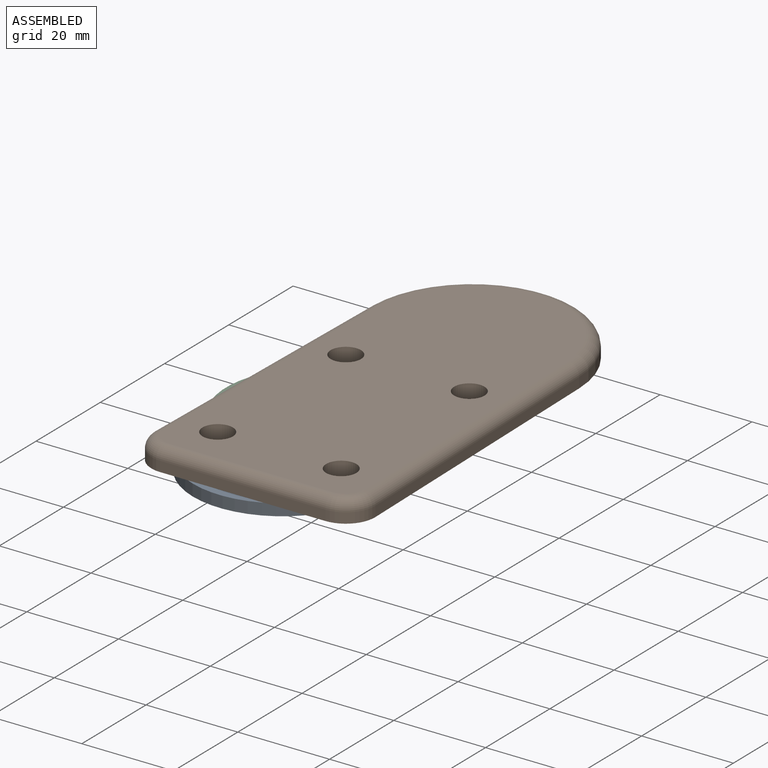
[diagram: assembled view]
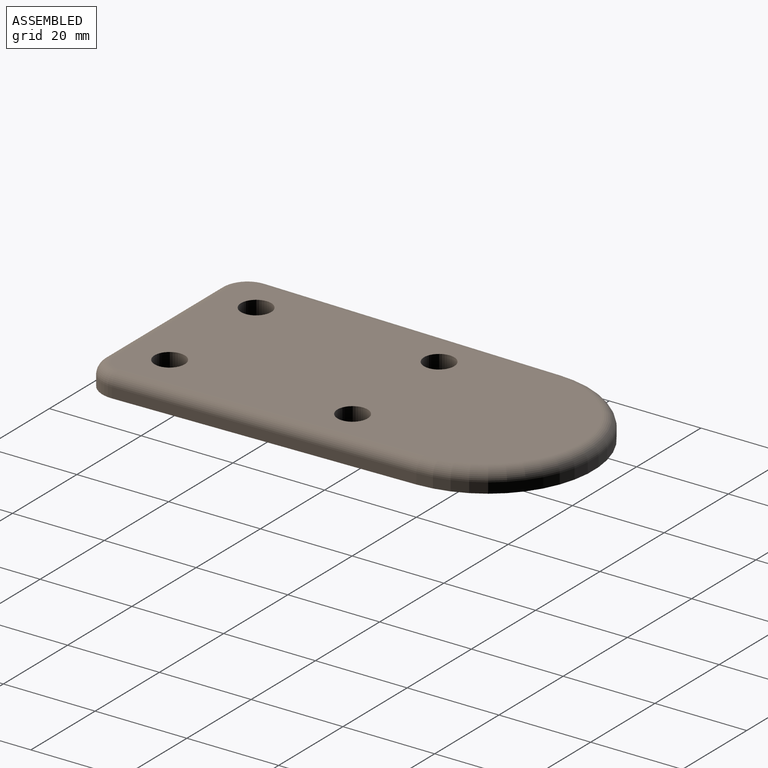
[diagram: assembled view, second angle]
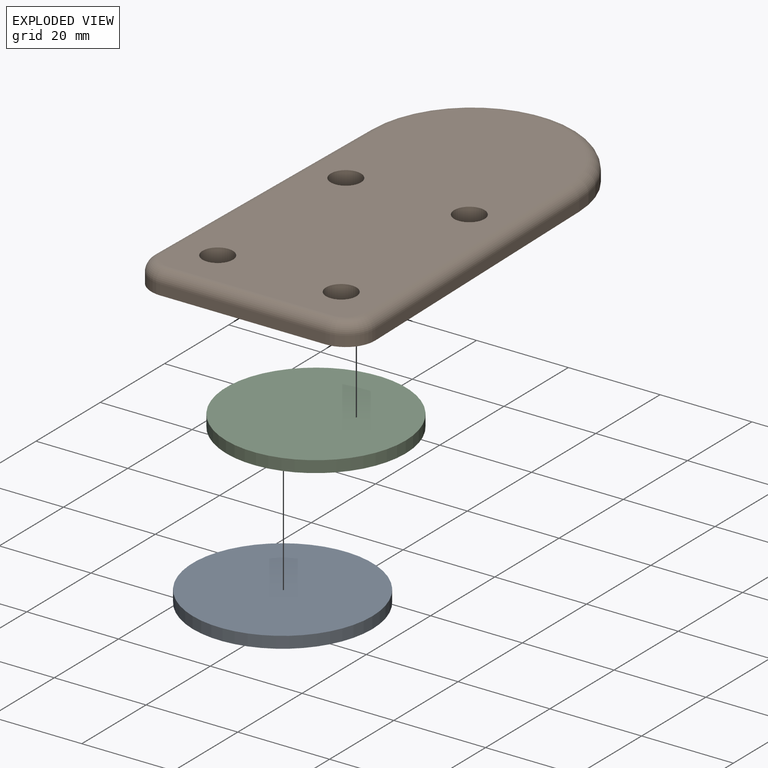
[diagram: exploded view]
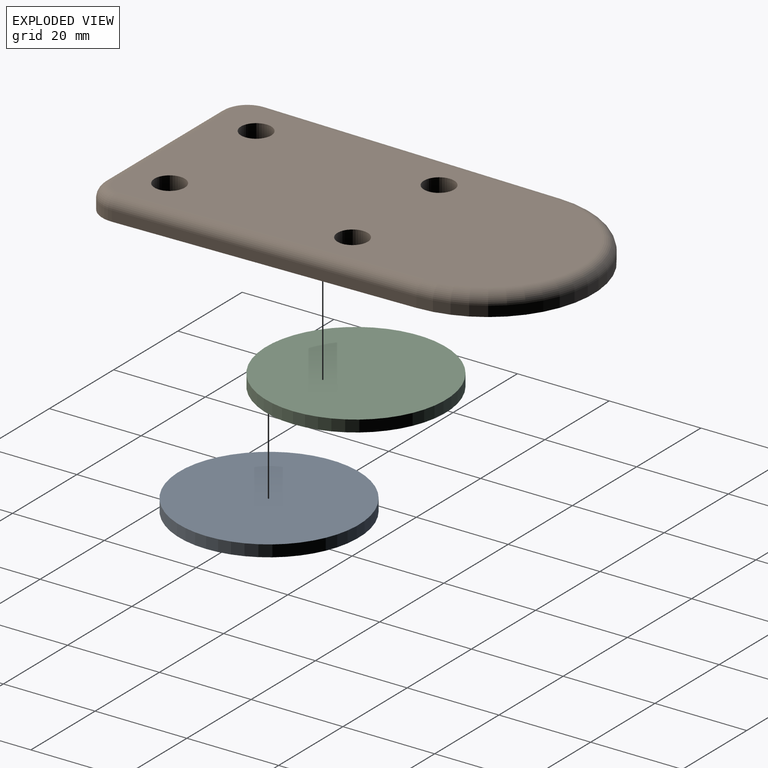
[diagram: exploded view, second angle]
ASSEMBLY  parts=3 mates=2
PART A: 5 faces, bbox 39.1x39.1x5.1 mm
  f0: cylinder r=12.99mm len=25.97mm, axis (0,0,-1), area 207.3mm2, adj f1,f4
  f1: plane 25.97x25.97mm, normal (0,0,-1), area 529.9mm2, adj f0
  f2: cylinder r=19.57mm len=39.15mm, axis (0,0,-1), area 312.4mm2, adj f3,f4
  f3: plane 39.15x39.15mm, normal (0,0,1), area 1203.7mm2, adj f2
  f4: plane 39.15x39.15mm, normal (0,0,-1), area 673.9mm2, adj f0,f2
PART B: 33 faces, bbox 49.8x96.8x4.8 mm
  f0: plane 11.68x11.68mm, normal (0,0,-1), area 73mm2, adj f12,f21
  f1: plane 11.68x11.68mm, normal (0,0,-1), area 73mm2, adj f9,f23
  f2: plane 11.68x11.68mm, normal (0,0,-1), area 73mm2, adj f11,f24
  f3: plane 94.39x48.75mm, normal (0,0,-1), area 788.6mm2, adj f4,f5,f6,f7,f8,f13,f16,f17
  f4: cylinder r=6.35mm len=6.48mm, axis (0,0,-1), area 22.5mm2, adj f3,f5,f13,f32
  f5: plane 65.4x2.22mm, normal (1,0.02,0), area 145.4mm2, adj f3,f4,f6,f31
  f6: cylinder r=22.99mm len=45.97mm, axis (0,0,-1), area 158.4mm2, adj f3,f5,f7,f29
  f7: plane 65.4x2.22mm, normal (-1,0.02,0), area 145.4mm2, adj f3,f6,f8,f27
  f8: cylinder r=6.35mm len=6.48mm, axis (0,0,-1), area 22.5mm2, adj f3,f7,f13,f28
  f9: cylinder r=3.3mm len=6.6mm, axis (0,0,-1), area 98.8mm2, adj f1,f14
  f10: cylinder r=3.3mm len=6.6mm, axis (0,0,-1), area 98.8mm2, adj f14,f15
  f11: cylinder r=3.3mm len=6.6mm, axis (0,0,-1), area 98.8mm2, adj f2,f14
  f12: cylinder r=3.3mm len=6.6mm, axis (0,0,-1), area 98.8mm2, adj f0,f14
  f13: plane 36.05x2.22mm, normal (0,-1,0), area 80.1mm2, adj f3,f4,f8,f30
  f14: plane 89.31x43.67mm, normal (0,0,1), area 3431.1mm2, adj f9,f10,f11,f12,f27,f28,f29,f30
  f15: plane 11.68x11.68mm, normal (0,0,-1), area 73mm2, adj f10,f22
  f16: plane 36.05x1.59mm, normal (0,1,0), area 57.2mm2, adj f3,f17,f25,f26
  f17: cylinder r=3.17mm len=3.24mm, axis (0,0,-1), area 8mm2, adj f3,f16,f18,f26
  f18: plane 65.4x1.59mm, normal (1,-0.02,0), area 103.8mm2, adj f3,f17,f19,f26
  f19: cylinder r=19.82mm len=39.63mm, axis (0,0,-1), area 97.5mm2, adj f3,f18,f20,f26
  f20: plane 65.4x1.59mm, normal (-1,-0.02,0), area 103.8mm2, adj f3,f19,f25,f26
  f21: cylinder r=5.84mm len=11.68mm, axis (0,0,-1), area 58.3mm2, adj f0,f26
  f22: cylinder r=5.84mm len=11.68mm, axis (0,0,-1), area 58.3mm2, adj f15,f26
  f23: cylinder r=5.84mm len=11.68mm, axis (0,0,-1), area 58.3mm2, adj f1,f26
  f24: cylinder r=5.84mm len=11.68mm, axis (0,0,-1), area 58.3mm2, adj f2,f26
  f25: cylinder r=3.17mm len=3.24mm, axis (0,0,-1), area 8mm2, adj f3,f16,f20,f26
  f26: plane 88.04x42.4mm, normal (0,0,-1), area 2986.6mm2, adj f16,f17,f18,f19,f20,f21,f22,f23
  f27: cylinder r=2.54mm len=65.45mm, axis (0.02,1,0), area 261mm2, adj f7,f14,f28,f29
  f28: torus R=3.81mm, axis (0,0,1), area 34.5mm2, adj f8,f14,f27,f30
  f29: torus R=20.45mm, axis (0,0,1), area 272.9mm2, adj f6,f14,f27,f31
  f30: cylinder r=2.54mm len=36.05mm, axis (-1,0,0), area 143.8mm2, adj f13,f14,f28,f32
  f31: cylinder r=2.54mm len=65.45mm, axis (0.02,-1,0), area 261mm2, adj f5,f14,f29,f32
  f32: torus R=3.81mm, axis (0,0,1), area 34.5mm2, adj f4,f14,f30,f31
PART C: same geometry as A
PLACE A t=(0.29,-17.9,-4.71)mm
PLACE B t=(5.59,-37.86,1.64)mm
PLACE C t=(-3.73,-1.78,-3.44)mm
MATE planar C.f2 <-> A.f2  axis (0,0,-1) through (-3.73,-1.78,-0.9)mm
MATE planar C.f2 <-> B.f11  axis (0,0,1) through (-3.73,-1.78,1.64)mm
